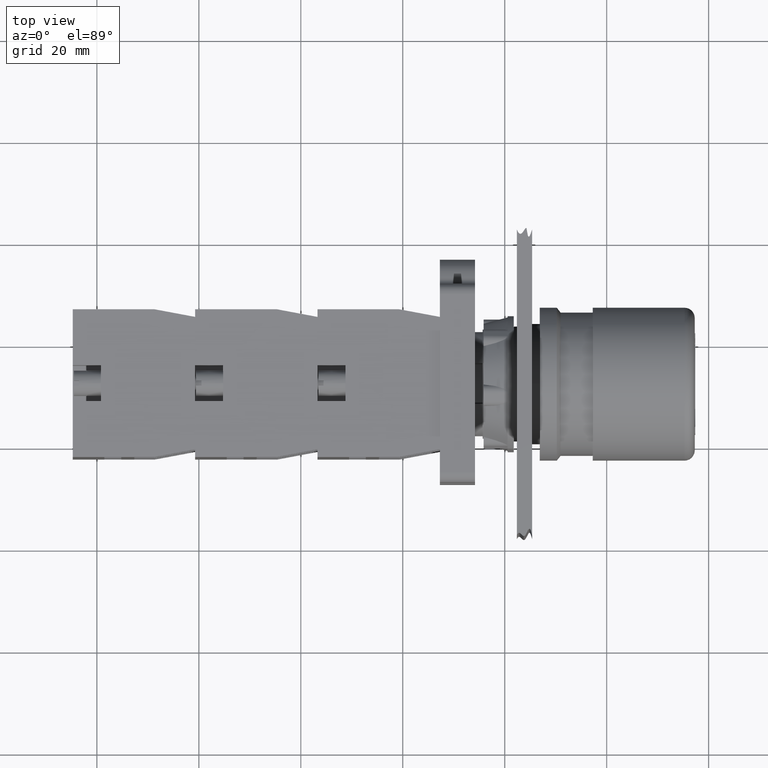
[diagram: clean part render]
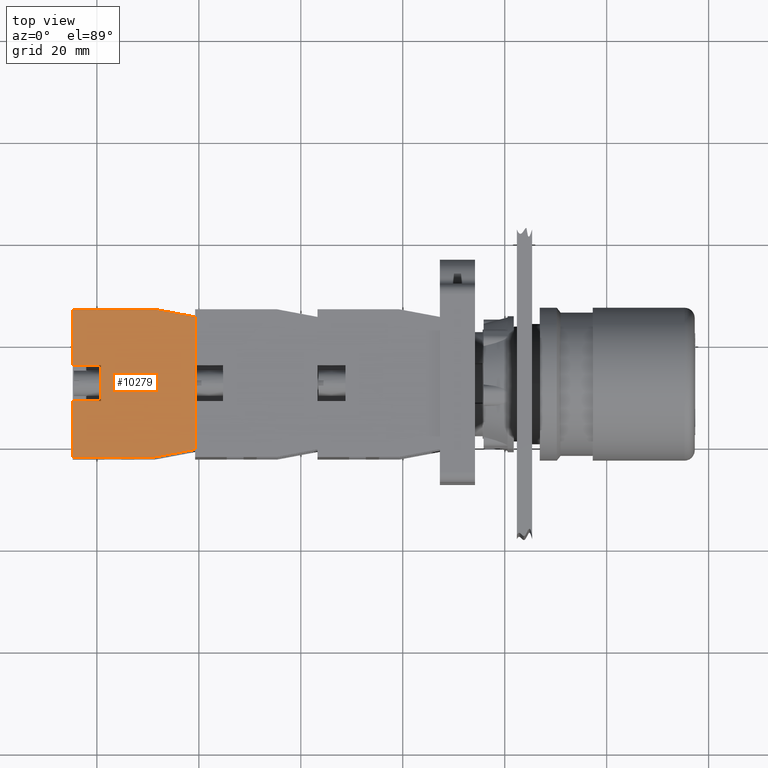
[diagram: same view with one face highlighted and labeled with its STEP entity id]
A machine part, top view. The second image highlights one B-rep face of the part: STEP entity #10279.
In plain terms, the highlighted planar face has unit normal (-0, -0, 1).
Its self-contained STEP definition (entity closure, byte-faithful):
#8582=CARTESIAN_POINT('',(-44.936741828918457,7.797073323279626,14.699999999999999));
#8583=VERTEX_POINT('',#8582);
#8590=CARTESIAN_POINT('',(-44.936741828918471,23.797073323279623,14.699999999999999));
#8591=VERTEX_POINT('',#8590);
#8592=CARTESIAN_POINT('',(-44.936741828918457,7.797073323279626,14.699999999999999));
#8593=DIRECTION('',(0.0,1.0,0.0));
#8594=VECTOR('',#8593,15.999999999999996);
#8595=LINE('',#8592,#8594);
#8596=EDGE_CURVE('',#8583,#8591,#8595,.T.);
#8663=CARTESIAN_POINT('',(-43.436741828918457,-0.202926676720380,14.699999999999999));
#8664=VERTEX_POINT('',#8663);
#8671=CARTESIAN_POINT('',(-43.436741828918457,-0.202926676720380,14.699999999999999));
#8672=DIRECTION('',(-0.184288535050185,0.982872186934322,0.0));
#8673=VECTOR('',#8672,8.139410298049860);
#8674=LINE('',#8671,#8673);
#8675=EDGE_CURVE('',#8664,#8583,#8674,.T.);
#8814=CARTESIAN_POINT('',(-17.436741828918457,-0.202926676720377,14.699999999999999));
#8815=VERTEX_POINT('',#8814);
#8822=CARTESIAN_POINT('',(-17.436741828918457,-0.202926676720377,14.699999999999999));
#8823=DIRECTION('',(-1.0,0.0,0.0));
#8824=VECTOR('',#8823,26.0);
#8825=LINE('',#8822,#8824);
#8826=EDGE_CURVE('',#8815,#8664,#8825,.T.);
#8907=CARTESIAN_POINT('',(-15.936741828918466,7.797073323279626,14.699999999999999));
#8908=VERTEX_POINT('',#8907);
#8915=CARTESIAN_POINT('',(-15.936741828918466,7.797073323279626,14.699999999999999));
#8916=DIRECTION('',(-0.184288535050184,-0.982872186934322,0.0));
#8917=VECTOR('',#8916,8.139410298049855);
#8918=LINE('',#8915,#8917);
#8919=EDGE_CURVE('',#8908,#8815,#8918,.T.);
#10014=CARTESIAN_POINT('',(-26.936741828918468,18.297073323279626,14.699999999999999));
#10015=VERTEX_POINT('',#10014);
#10024=CARTESIAN_POINT('',(-26.936741828918468,23.797073323279626,14.699999999999999));
#10025=VERTEX_POINT('',#10024);
#10026=CARTESIAN_POINT('',(-26.936741828918468,23.797073323279626,14.699999999999999));
#10027=DIRECTION('',(0.0,-1.0,0.0));
#10028=VECTOR('',#10027,5.500000000000000);
#10029=LINE('',#10026,#10028);
#10030=EDGE_CURVE('',#10025,#10015,#10029,.T.);
#10085=CARTESIAN_POINT('',(-33.936741828918464,18.297073323279619,14.699999999999999));
#10086=VERTEX_POINT('',#10085);
#10094=CARTESIAN_POINT('',(-33.936741828918464,23.797073323279623,14.699999999999999));
#10095=VERTEX_POINT('',#10094);
#10102=CARTESIAN_POINT('',(-33.936741828918464,18.297073323279619,14.699999999999999));
#10103=DIRECTION('',(0.0,1.0,0.0));
#10104=VECTOR('',#10103,5.500000000000004);
#10105=LINE('',#10102,#10104);
#10106=EDGE_CURVE('',#10086,#10095,#10105,.T.);
#10119=CARTESIAN_POINT('',(-26.936741828918468,18.297073323279626,14.699999999999999));
#10120=DIRECTION('',(-1.0,0.0,0.0));
#10121=VECTOR('',#10120,6.999999999999996);
#10122=LINE('',#10119,#10121);
#10123=EDGE_CURVE('',#10015,#10086,#10122,.T.);
#10139=CARTESIAN_POINT('',(-15.936741828918466,23.797073323279626,14.699999999999999));
#10140=VERTEX_POINT('',#10139);
#10141=CARTESIAN_POINT('',(-26.936741828918468,23.797073323279626,14.699999999999999));
#10142=DIRECTION('',(1.0,0.0,0.0));
#10143=VECTOR('',#10142,11.000000000000002);
#10144=LINE('',#10141,#10143);
#10145=EDGE_CURVE('',#10025,#10140,#10144,.T.);
#10162=CARTESIAN_POINT('',(-44.936741828918471,23.797073323279623,14.699999999999999));
#10163=DIRECTION('',(1.0,0.0,0.0));
#10164=VECTOR('',#10163,11.000000000000007);
#10165=LINE('',#10162,#10164);
#10166=EDGE_CURVE('',#8591,#10095,#10165,.T.);
#10210=CARTESIAN_POINT('',(-15.936741828918466,23.797073323279626,14.699999999999999));
#10211=DIRECTION('',(0.0,-1.0,0.0));
#10212=VECTOR('',#10211,16.0);
#10213=LINE('',#10210,#10212);
#10214=EDGE_CURVE('',#10140,#8908,#10213,.T.);
#10262=CARTESIAN_POINT('',(-30.436741828918457,12.124046801833057,14.699999999999999));
#10263=DIRECTION('',(0.0,0.0,1.0));
#10264=DIRECTION('',(1.0,0.0,0.0));
#10265=AXIS2_PLACEMENT_3D('',#10262,#10263,#10264);
#10266=PLANE('',#10265);
#10267=ORIENTED_EDGE('',*,*,#10106,.T.);
#10268=ORIENTED_EDGE('',*,*,#10166,.F.);
#10269=ORIENTED_EDGE('',*,*,#8596,.F.);
#10270=ORIENTED_EDGE('',*,*,#8675,.F.);
#10271=ORIENTED_EDGE('',*,*,#8826,.F.);
#10272=ORIENTED_EDGE('',*,*,#8919,.F.);
#10273=ORIENTED_EDGE('',*,*,#10214,.F.);
#10274=ORIENTED_EDGE('',*,*,#10145,.F.);
#10275=ORIENTED_EDGE('',*,*,#10030,.T.);
#10276=ORIENTED_EDGE('',*,*,#10123,.T.);
#10277=EDGE_LOOP('',(#10267,#10268,#10269,#10270,#10271,#10272,#10273,#10274,#10275,#10276));
#10278=FACE_OUTER_BOUND('',#10277,.T.);
#10279=ADVANCED_FACE('',(#10278),#10266,.T.);